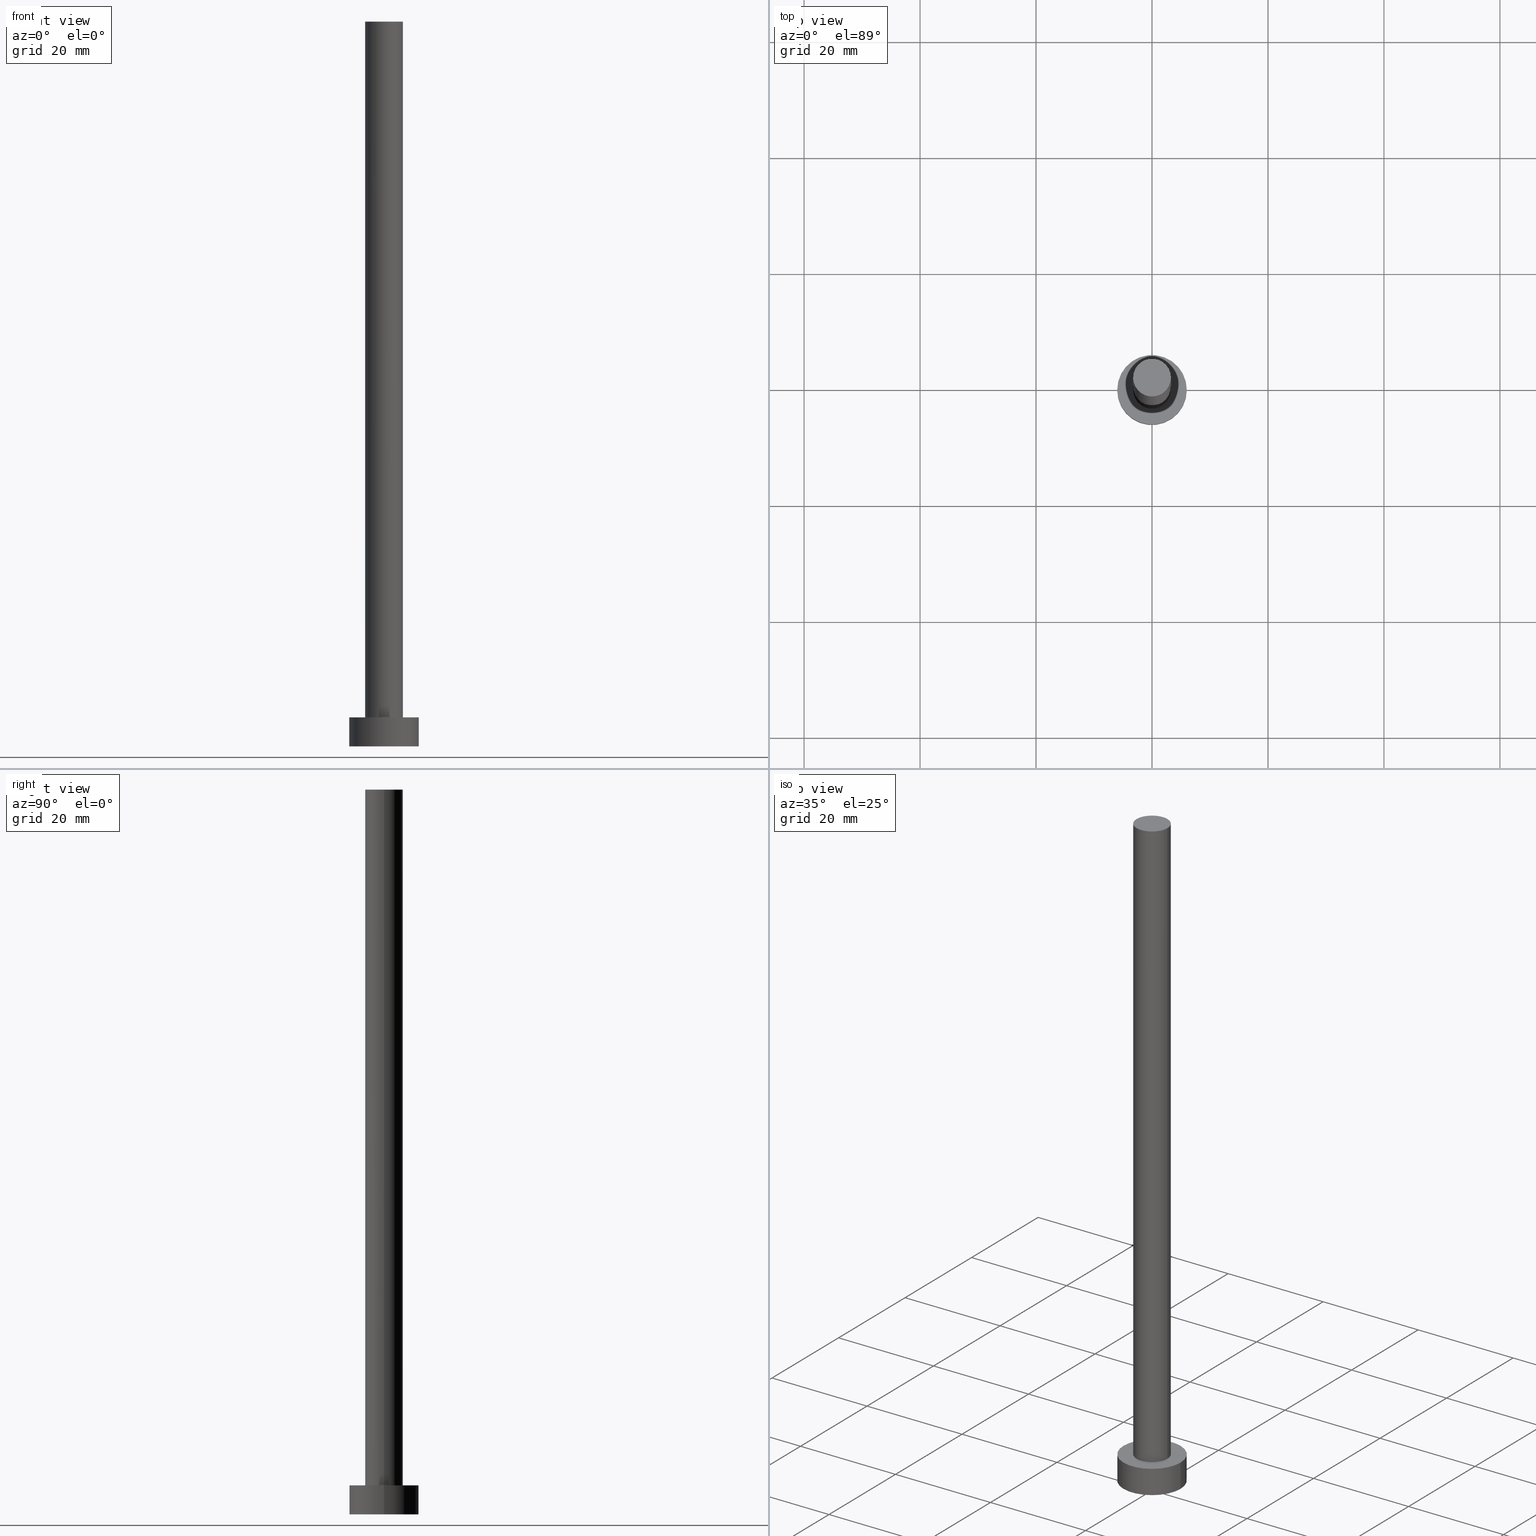
[diagram: canonical four-view strip — front | top / right | iso, engineering-drawing reading convention]
A machine part, canonical four-view strip (front | top / right | iso — engineering-drawing reading convention). The complete STEP part file that produces these views, byte-faithful:
ISO-10303-21;
HEADER;
FILE_DESCRIPTION (( 'STEP AP203' ),
    '1' );
FILE_NAME ('f3b6.STEP',
    '2023-02-12T12:08:41',
    ( '' ),
    ( '' ),
    'SwSTEP 2.0',
    'SolidWorks 2019',
    '' );
FILE_SCHEMA (( 'CONFIG_CONTROL_DESIGN' ));
ENDSEC;

DATA;
#1 = CC_DESIGN_SECURITY_CLASSIFICATION ( #233, ( #229 ) ) ;
#2 = VECTOR ( 'NONE', #177, 1000.000000000000000 ) ;
#3 = EDGE_CURVE ( 'NONE', #64, #122, #103, .T. ) ;
#4 = DATE_AND_TIME ( #57, #148 ) ;
#5 = EDGE_LOOP ( 'NONE', ( #145, #125 ) ) ;
#6 = CALENDAR_DATE ( 2023, 12, 2 ) ;
#7 = CC_DESIGN_DATE_AND_TIME_ASSIGNMENT ( #217, #9, ( #99 ) ) ;
#8 = DIRECTION ( 'NONE',  ( 1.000000000000000000, 0.000000000000000000, 0.000000000000000000 ) ) ;
#9 = DATE_TIME_ROLE ( 'creation_date' ) ;
#10 = CIRCLE ( 'NONE', #173, 3.250000000000000444 ) ;
#11 = CARTESIAN_POINT ( 'NONE',  ( 3.250000000000000444, 3.980102097228898231E-16, 125.0000000000000000 ) ) ;
#12 = ORIENTED_EDGE ( 'NONE', *, *, #20, .T. ) ;
#13 = EDGE_LOOP ( 'NONE', ( #27, #140, #101, #165 ) ) ;
#14 = FACE_OUTER_BOUND ( 'NONE', #5, .T. ) ;
#15 = CC_DESIGN_APPROVAL ( #22, ( #233 ) ) ;
#16 = PLANE ( 'NONE',  #179 ) ;
#17 =( GEOMETRIC_REPRESENTATION_CONTEXT ( 3 ) GLOBAL_UNCERTAINTY_ASSIGNED_CONTEXT ( ( #129 ) ) GLOBAL_UNIT_ASSIGNED_CONTEXT ( ( #213, #19, #56 ) ) REPRESENTATION_CONTEXT ( 'NONE', 'WORKASPACE' ) );
#18 = DIRECTION ( 'NONE',  ( -1.000000000000000000, 0.000000000000000000, 0.000000000000000000 ) ) ;
#19 =( NAMED_UNIT ( * ) PLANE_ANGLE_UNIT ( ) SI_UNIT ( $, .RADIAN. ) );
#20 = EDGE_CURVE ( 'NONE', #224, #64, #139, .T. ) ;
#21 = APPROVAL_DATE_TIME ( #41, #22 ) ;
#22 = APPROVAL ( #117, 'NEUR�EN�' ) ;
#23 = CIRCLE ( 'NONE', #144, 6.000000000000000888 ) ;
#24 = ORIENTED_EDGE ( 'NONE', *, *, #112, .F. ) ;
#25 = DATE_AND_TIME ( #6, #142 ) ;
#26 = APPROVAL_PERSON_ORGANIZATION ( #30, #251, #146 ) ;
#27 = ORIENTED_EDGE ( 'NONE', *, *, #20, .F. ) ;
#28 = ORIENTED_EDGE ( 'NONE', *, *, #226, .T. ) ;
#29 = DIRECTION ( 'NONE',  ( -0.000000000000000000, -0.000000000000000000, -1.000000000000000000 ) ) ;
#30 = PERSON_AND_ORGANIZATION ( #33, #50 ) ;
#31 = EDGE_LOOP ( 'NONE', ( #123, #24, #241, #28 ) ) ;
#32 = DIRECTION ( 'NONE',  ( 0.000000000000000000, 0.000000000000000000, 1.000000000000000000 ) ) ;
#33 = PERSON ( 'NEUR�EN�', 'NEUR�EN�', 'NEUR�EN�', ('NEUR�EN�'), ('NEUR�EN�'), ('NEUR�EN�') ) ;
#34 = DIRECTION ( 'NONE',  ( 0.000000000000000000, 0.000000000000000000, 1.000000000000000000 ) ) ;
#35 = DIRECTION ( 'NONE',  ( -0.000000000000000000, -0.000000000000000000, -1.000000000000000000 ) ) ;
#36 = DIRECTION ( 'NONE',  ( 1.000000000000000000, 0.000000000000000000, 0.000000000000000000 ) ) ;
#37 = DIRECTION ( 'NONE',  ( -1.000000000000000000, 0.000000000000000000, 0.000000000000000000 ) ) ;
#38 = CC_DESIGN_PERSON_AND_ORGANIZATION_ASSIGNMENT ( #40, #174, ( #233 ) ) ;
#39 = AXIS2_PLACEMENT_3D ( 'NONE', #115, #210, #255 ) ;
#40 = PERSON_AND_ORGANIZATION ( #33, #50 ) ;
#41 = DATE_AND_TIME ( #219, #55 ) ;
#42 = EDGE_CURVE ( 'NONE', #159, #122, #23, .T. ) ;
#43 = COORDINATED_UNIVERSAL_TIME_OFFSET ( 1, 0, .AHEAD. ) ;
#44 = DIRECTION ( 'NONE',  ( 0.000000000000000000, 0.000000000000000000, 1.000000000000000000 ) ) ;
#45 = ORIENTED_EDGE ( 'NONE', *, *, #199, .F. ) ;
#46 = AXIS2_PLACEMENT_3D ( 'NONE', #72, #154, #36 ) ;
#47 = PRODUCT ( 'f3b6', 'f3b6', '', ( #168 ) ) ;
#48 = VERTEX_POINT ( 'NONE', #180 ) ;
#49 = PERSON_AND_ORGANIZATION ( #33, #50 ) ;
#50 = ORGANIZATION ( 'NEUR�EN�', 'NEUR�EN�', '' ) ;
#51 = CARTESIAN_POINT ( 'NONE',  ( 0.000000000000000000, 0.000000000000000000, 125.0000000000000000 ) ) ;
#52 = DIRECTION ( 'NONE',  ( 0.000000000000000000, 0.000000000000000000, 1.000000000000000000 ) ) ;
#53 = FACE_OUTER_BOUND ( 'NONE', #58, .T. ) ;
#54 = FACE_OUTER_BOUND ( 'NONE', #203, .T. ) ;
#55 = LOCAL_TIME ( 13, 8, 41.00000000000000000, #136 ) ;
#56 =( NAMED_UNIT ( * ) SI_UNIT ( $, .STERADIAN. ) SOLID_ANGLE_UNIT ( ) );
#57 = CALENDAR_DATE ( 2023, 12, 2 ) ;
#58 = EDGE_LOOP ( 'NONE', ( #81, #243 ) ) ;
#59 = CARTESIAN_POINT ( 'NONE',  ( -6.000000000000000888, 0.000000000000000000, 5.000000000000000000 ) ) ;
#60 = APPROVAL_DATE_TIME ( #25, #120 ) ;
#61 = VERTEX_POINT ( 'NONE', #11 ) ;
#62 = EDGE_CURVE ( 'NONE', #61, #78, #162, .T. ) ;
#63 = EDGE_LOOP ( 'NONE', ( #225, #239, #198, #85 ) ) ;
#64 = VERTEX_POINT ( 'NONE', #88 ) ;
#65 = DIRECTION ( 'NONE',  ( -0.000000000000000000, -0.000000000000000000, -1.000000000000000000 ) ) ;
#66 = CIRCLE ( 'NONE', #245, 6.000000000000000888 ) ;
#67 = PLANE ( 'NONE',  #244 ) ;
#68 = EDGE_CURVE ( 'NONE', #78, #48, #10, .T. ) ;
#69 = AXIS2_PLACEMENT_3D ( 'NONE', #150, #52, #128 ) ;
#70 = CIRCLE ( 'NONE', #46, 3.250000000000000444 ) ;
#71 = CARTESIAN_POINT ( 'NONE',  ( 6.000000000000000888, 7.347880794884120722E-16, 0.000000000000000000 ) ) ;
#72 = CARTESIAN_POINT ( 'NONE',  ( 0.000000000000000000, 0.000000000000000000, 5.000000000000000000 ) ) ;
#73 = AXIS2_PLACEMENT_3D ( 'NONE', #113, #32, #92 ) ;
#74 = CYLINDRICAL_SURFACE ( 'NONE', #105, 6.000000000000000888 ) ;
#75 = PERSON_AND_ORGANIZATION ( #33, #50 ) ;
#76 = CC_DESIGN_APPROVAL ( #251, ( #99 ) ) ;
#77 = ORIENTED_EDGE ( 'NONE', *, *, #190, .F. ) ;
#78 = VERTEX_POINT ( 'NONE', #207 ) ;
#79 = PERSON_AND_ORGANIZATION ( #33, #50 ) ;
#80 = COORDINATED_UNIVERSAL_TIME_OFFSET ( 1, 0, .AHEAD. ) ;
#81 = ORIENTED_EDGE ( 'NONE', *, *, #192, .F. ) ;
#82 = ADVANCED_FACE ( 'NONE', ( #205 ), #107, .T. ) ;
#83 = ORIENTED_EDGE ( 'NONE', *, *, #68, .F. ) ;
#84 = APPLICATION_PROTOCOL_DEFINITION ( 'international standard', 'config_control_design', 1994, #110 ) ;
#85 = ORIENTED_EDGE ( 'NONE', *, *, #192, .T. ) ;
#86 = DIRECTION ( 'NONE',  ( -0.000000000000000000, -0.000000000000000000, -1.000000000000000000 ) ) ;
#87 = CC_DESIGN_APPROVAL ( #120, ( #229 ) ) ;
#88 = CARTESIAN_POINT ( 'NONE',  ( -6.000000000000000888, 0.000000000000000000, 5.000000000000000000 ) ) ;
#89 = DESIGN_CONTEXT ( 'detailed design', #110, 'design' ) ;
#90 = CARTESIAN_POINT ( 'NONE',  ( -6.000000000000000888, 0.000000000000000000, 0.000000000000000000 ) ) ;
#91 = ADVANCED_FACE ( 'NONE', ( #53 ), #16, .F. ) ;
#92 = DIRECTION ( 'NONE',  ( 1.000000000000000000, 0.000000000000000000, 0.000000000000000000 ) ) ;
#93 = DIRECTION ( 'NONE',  ( -0.000000000000000000, -0.000000000000000000, -1.000000000000000000 ) ) ;
#94 = DIRECTION ( 'NONE',  ( -1.000000000000000000, 0.000000000000000000, 0.000000000000000000 ) ) ;
#95 = PERSON_AND_ORGANIZATION_ROLE ( 'design_supplier' ) ;
#96 = CIRCLE ( 'NONE', #121, 3.250000000000000444 ) ;
#97 = APPROVAL_STATUS ( 'not_yet_approved' ) ;
#98 = ADVANCED_BREP_SHAPE_REPRESENTATION ( 'f3b6', ( #118, #211 ), #17 ) ;
#99 = PRODUCT_DEFINITION ( 'NEZN�M�', '', #229, #89 ) ;
#100 = ORIENTED_EDGE ( 'NONE', *, *, #68, .T. ) ;
#101 = ORIENTED_EDGE ( 'NONE', *, *, #42, .T. ) ;
#102 = CALENDAR_DATE ( 2023, 12, 2 ) ;
#103 = LINE ( 'NONE', #59, #2 ) ;
#104 = PERSON_AND_ORGANIZATION_ROLE ( 'design_owner' ) ;
#105 = AXIS2_PLACEMENT_3D ( 'NONE', #215, #132, #94 ) ;
#106 = ORIENTED_EDGE ( 'NONE', *, *, #196, .T. ) ;
#107 = CYLINDRICAL_SURFACE ( 'NONE', #135, 6.000000000000000888 ) ;
#108 = CARTESIAN_POINT ( 'NONE',  ( 0.000000000000000000, 0.000000000000000000, 5.000000000000000000 ) ) ;
#109 = LOCAL_TIME ( 13, 8, 41.00000000000000000, #138 ) ;
#110 = APPLICATION_CONTEXT ( 'configuration controlled 3d designs of mechanical parts and assemblies' ) ;
#111 = DIRECTION ( 'NONE',  ( 1.000000000000000000, 0.000000000000000000, -0.000000000000000000 ) ) ;
#112 = EDGE_CURVE ( 'NONE', #182, #61, #96, .T. ) ;
#113 = CARTESIAN_POINT ( 'NONE',  ( 0.000000000000000000, 0.000000000000000000, 0.000000000000000000 ) ) ;
#114 = APPROVAL_PERSON_ORGANIZATION ( #79, #120, #197 ) ;
#115 = CARTESIAN_POINT ( 'NONE',  ( 0.000000000000000000, 0.000000000000000000, 125.0000000000000000 ) ) ;
#116 = CARTESIAN_POINT ( 'NONE',  ( 0.000000000000000000, 0.000000000000000000, 125.0000000000000000 ) ) ;
#117 = APPROVAL_STATUS ( 'not_yet_approved' ) ;
#118 = MANIFOLD_SOLID_BREP ( 'P�idat vysunut�m3', #221 ) ;
#119 = SHAPE_DEFINITION_REPRESENTATION ( #124, #98 ) ;
#120 = APPROVAL ( #97, 'NEUR�EN�' ) ;
#121 = AXIS2_PLACEMENT_3D ( 'NONE', #186, #184, #170 ) ;
#122 = VERTEX_POINT ( 'NONE', #90 ) ;
#123 = ORIENTED_EDGE ( 'NONE', *, *, #62, .F. ) ;
#124 = PRODUCT_DEFINITION_SHAPE ( 'NONE', 'NONE',  #99 ) ;
#125 = ORIENTED_EDGE ( 'NONE', *, *, #199, .T. ) ;
#126 = PERSON_AND_ORGANIZATION_ROLE ( 'creator' ) ;
#127 = DIRECTION ( 'NONE',  ( 1.000000000000000000, 0.000000000000000000, 0.000000000000000000 ) ) ;
#128 = DIRECTION ( 'NONE',  ( 1.000000000000000000, 0.000000000000000000, -0.000000000000000000 ) ) ;
#129 = UNCERTAINTY_MEASURE_WITH_UNIT (LENGTH_MEASURE( 1.000000000000000082E-05 ), #213, 'distance_accuracy_value', 'NONE');
#130 = LINE ( 'NONE', #209, #216 ) ;
#131 = CYLINDRICAL_SURFACE ( 'NONE', #218, 3.250000000000000444 ) ;
#132 = DIRECTION ( 'NONE',  ( -0.000000000000000000, -0.000000000000000000, -1.000000000000000000 ) ) ;
#133 = CC_DESIGN_PERSON_AND_ORGANIZATION_ASSIGNMENT ( #178, #104, ( #47 ) ) ;
#134 = FACE_OUTER_BOUND ( 'NONE', #31, .T. ) ;
#135 = AXIS2_PLACEMENT_3D ( 'NONE', #171, #65, #18 ) ;
#136 = COORDINATED_UNIVERSAL_TIME_OFFSET ( 1, 0, .AHEAD. ) ;
#137 = EDGE_LOOP ( 'NONE', ( #163, #83 ) ) ;
#138 = COORDINATED_UNIVERSAL_TIME_OFFSET ( 1, 0, .AHEAD. ) ;
#139 = CIRCLE ( 'NONE', #194, 6.000000000000000888 ) ;
#140 = ORIENTED_EDGE ( 'NONE', *, *, #153, .T. ) ;
#141 = PRODUCT_RELATED_PRODUCT_CATEGORY ( 'detail', '', ( #47 ) ) ;
#142 = LOCAL_TIME ( 13, 8, 41.00000000000000000, #43 ) ;
#143 = DATE_AND_TIME ( #161, #188 ) ;
#144 = AXIS2_PLACEMENT_3D ( 'NONE', #160, #44, #240 ) ;
#145 = ORIENTED_EDGE ( 'NONE', *, *, #112, .T. ) ;
#146 = APPROVAL_ROLE ( '' ) ;
#147 = ADVANCED_FACE ( 'NONE', ( #14 ), #67, .T. ) ;
#148 = LOCAL_TIME ( 13, 8, 41.00000000000000000, #236 ) ;
#149 = DIRECTION ( 'NONE',  ( 0.000000000000000000, 0.000000000000000000, 1.000000000000000000 ) ) ;
#150 = CARTESIAN_POINT ( 'NONE',  ( 0.000000000000000000, 0.000000000000000000, 5.000000000000000000 ) ) ;
#151 = DIRECTION ( 'NONE',  ( 1.000000000000000000, 0.000000000000000000, 0.000000000000000000 ) ) ;
#152 = CIRCLE ( 'NONE', #39, 3.250000000000000444 ) ;
#153 = EDGE_CURVE ( 'NONE', #224, #159, #248, .T. ) ;
#154 = DIRECTION ( 'NONE',  ( 0.000000000000000000, 0.000000000000000000, 1.000000000000000000 ) ) ;
#155 = DIRECTION ( 'NONE',  ( -1.000000000000000000, 0.000000000000000000, 0.000000000000000000 ) ) ;
#156 = ADVANCED_FACE ( 'NONE', ( #247, #230 ), #252, .T. ) ;
#157 = PERSON_AND_ORGANIZATION ( #33, #50 ) ;
#158 = DATE_TIME_ROLE ( 'classification_date' ) ;
#159 = VERTEX_POINT ( 'NONE', #71 ) ;
#160 = CARTESIAN_POINT ( 'NONE',  ( 0.000000000000000000, 0.000000000000000000, 0.000000000000000000 ) ) ;
#161 = CALENDAR_DATE ( 2023, 12, 2 ) ;
#162 = LINE ( 'NONE', #202, #208 ) ;
#163 = ORIENTED_EDGE ( 'NONE', *, *, #226, .F. ) ;
#164 = VECTOR ( 'NONE', #86, 1000.000000000000000 ) ;
#165 = ORIENTED_EDGE ( 'NONE', *, *, #3, .F. ) ;
#166 = APPROVAL_PERSON_ORGANIZATION ( #75, #22, #195 ) ;
#167 = CARTESIAN_POINT ( 'NONE',  ( 0.000000000000000000, 0.000000000000000000, 5.000000000000000000 ) ) ;
#168 = MECHANICAL_CONTEXT ( 'NONE', #212, 'mechanical' ) ;
#169 = CC_DESIGN_PERSON_AND_ORGANIZATION_ASSIGNMENT ( #157, #175, ( #229 ) ) ;
#170 = DIRECTION ( 'NONE',  ( 1.000000000000000000, 0.000000000000000000, 0.000000000000000000 ) ) ;
#171 = CARTESIAN_POINT ( 'NONE',  ( 0.000000000000000000, 0.000000000000000000, 5.000000000000000000 ) ) ;
#172 = CARTESIAN_POINT ( 'NONE',  ( 6.000000000000000888, 7.347880794884120722E-16, 5.000000000000000000 ) ) ;
#173 = AXIS2_PLACEMENT_3D ( 'NONE', #167, #187, #151 ) ;
#174 = PERSON_AND_ORGANIZATION_ROLE ( 'classification_officer' ) ;
#175 = PERSON_AND_ORGANIZATION_ROLE ( 'creator' ) ;
#176 = PERSON_AND_ORGANIZATION ( #33, #50 ) ;
#177 = DIRECTION ( 'NONE',  ( -0.000000000000000000, -0.000000000000000000, -1.000000000000000000 ) ) ;
#178 = PERSON_AND_ORGANIZATION ( #33, #50 ) ;
#179 = AXIS2_PLACEMENT_3D ( 'NONE', #250, #34, #111 ) ;
#180 = CARTESIAN_POINT ( 'NONE',  ( -3.250000000000000444, 0.000000000000000000, 5.000000000000000000 ) ) ;
#181 = DIRECTION ( 'NONE',  ( 1.000000000000000000, 0.000000000000000000, 0.000000000000000000 ) ) ;
#182 = VERTEX_POINT ( 'NONE', #231 ) ;
#183 = CIRCLE ( 'NONE', #73, 6.000000000000000888 ) ;
#184 = DIRECTION ( 'NONE',  ( 0.000000000000000000, 0.000000000000000000, 1.000000000000000000 ) ) ;
#185 = DIRECTION ( 'NONE',  ( 0.000000000000000000, 0.000000000000000000, 1.000000000000000000 ) ) ;
#186 = CARTESIAN_POINT ( 'NONE',  ( 0.000000000000000000, 0.000000000000000000, 125.0000000000000000 ) ) ;
#187 = DIRECTION ( 'NONE',  ( 0.000000000000000000, 0.000000000000000000, 1.000000000000000000 ) ) ;
#188 = LOCAL_TIME ( 13, 8, 41.00000000000000000, #80 ) ;
#189 = APPLICATION_PROTOCOL_DEFINITION ( 'international standard', 'config_control_design', 1994, #212 ) ;
#190 = EDGE_CURVE ( 'NONE', #182, #48, #130, .T. ) ;
#191 = CARTESIAN_POINT ( 'NONE',  ( 6.000000000000000888, 7.347880794884120722E-16, 5.000000000000000000 ) ) ;
#192 = EDGE_CURVE ( 'NONE', #122, #159, #183, .T. ) ;
#193 = CYLINDRICAL_SURFACE ( 'NONE', #223, 3.250000000000000444 ) ;
#194 = AXIS2_PLACEMENT_3D ( 'NONE', #220, #227, #8 ) ;
#195 = APPROVAL_ROLE ( '' ) ;
#196 = EDGE_CURVE ( 'NONE', #64, #224, #66, .T. ) ;
#197 = APPROVAL_ROLE ( '' ) ;
#198 = ORIENTED_EDGE ( 'NONE', *, *, #3, .T. ) ;
#199 = EDGE_CURVE ( 'NONE', #61, #182, #152, .T. ) ;
#200 = ORIENTED_EDGE ( 'NONE', *, *, #62, .T. ) ;
#201 = CC_DESIGN_PERSON_AND_ORGANIZATION_ASSIGNMENT ( #176, #95, ( #229 ) ) ;
#202 = CARTESIAN_POINT ( 'NONE',  ( 3.250000000000000444, 3.980102097228898231E-16, 125.0000000000000000 ) ) ;
#203 = EDGE_LOOP ( 'NONE', ( #45, #200, #100, #77 ) ) ;
#204 = DIRECTION ( 'NONE',  ( 0.000000000000000000, 0.000000000000000000, 1.000000000000000000 ) ) ;
#205 = FACE_OUTER_BOUND ( 'NONE', #63, .T. ) ;
#206 = DIRECTION ( 'NONE',  ( 1.000000000000000000, 0.000000000000000000, -0.000000000000000000 ) ) ;
#207 = CARTESIAN_POINT ( 'NONE',  ( 3.250000000000000444, 3.980102097228898231E-16, 5.000000000000000000 ) ) ;
#208 = VECTOR ( 'NONE', #29, 1000.000000000000000 ) ;
#209 = CARTESIAN_POINT ( 'NONE',  ( -3.250000000000000444, 0.000000000000000000, 125.0000000000000000 ) ) ;
#210 = DIRECTION ( 'NONE',  ( 0.000000000000000000, 0.000000000000000000, 1.000000000000000000 ) ) ;
#211 = AXIS2_PLACEMENT_3D ( 'NONE', #253, #185, #181 ) ;
#212 = APPLICATION_CONTEXT ( 'configuration controlled 3d designs of mechanical parts and assemblies' ) ;
#213 =( LENGTH_UNIT ( ) NAMED_UNIT ( * ) SI_UNIT ( .MILLI., .METRE. ) );
#214 = CC_DESIGN_DATE_AND_TIME_ASSIGNMENT ( #4, #158, ( #233 ) ) ;
#215 = CARTESIAN_POINT ( 'NONE',  ( 0.000000000000000000, 0.000000000000000000, 5.000000000000000000 ) ) ;
#216 = VECTOR ( 'NONE', #35, 1000.000000000000000 ) ;
#217 = DATE_AND_TIME ( #102, #109 ) ;
#218 = AXIS2_PLACEMENT_3D ( 'NONE', #116, #234, #155 ) ;
#219 = CALENDAR_DATE ( 2023, 12, 2 ) ;
#220 = CARTESIAN_POINT ( 'NONE',  ( 0.000000000000000000, 0.000000000000000000, 5.000000000000000000 ) ) ;
#221 = CLOSED_SHELL ( 'NONE', ( #238, #237, #82, #156, #91, #249, #147 ) ) ;
#222 = EDGE_LOOP ( 'NONE', ( #106, #12 ) ) ;
#223 = AXIS2_PLACEMENT_3D ( 'NONE', #254, #93, #37 ) ;
#224 = VERTEX_POINT ( 'NONE', #191 ) ;
#225 = ORIENTED_EDGE ( 'NONE', *, *, #153, .F. ) ;
#226 = EDGE_CURVE ( 'NONE', #48, #78, #70, .T. ) ;
#227 = DIRECTION ( 'NONE',  ( 0.000000000000000000, 0.000000000000000000, 1.000000000000000000 ) ) ;
#228 = APPROVAL_DATE_TIME ( #143, #251 ) ;
#229 = PRODUCT_DEFINITION_FORMATION_WITH_SPECIFIED_SOURCE ( 'LIBOVOLN�', '', #47, .NOT_KNOWN. ) ;
#230 = FACE_OUTER_BOUND ( 'NONE', #222, .T. ) ;
#231 = CARTESIAN_POINT ( 'NONE',  ( -3.250000000000000444, 0.000000000000000000, 125.0000000000000000 ) ) ;
#232 = FACE_OUTER_BOUND ( 'NONE', #13, .T. ) ;
#233 = SECURITY_CLASSIFICATION ( '', '', #235 ) ;
#234 = DIRECTION ( 'NONE',  ( -0.000000000000000000, -0.000000000000000000, -1.000000000000000000 ) ) ;
#235 = SECURITY_CLASSIFICATION_LEVEL ( 'unclassified' ) ;
#236 = COORDINATED_UNIVERSAL_TIME_OFFSET ( 1, 0, .AHEAD. ) ;
#237 = ADVANCED_FACE ( 'NONE', ( #232 ), #74, .T. ) ;
#238 = ADVANCED_FACE ( 'NONE', ( #54 ), #131, .T. ) ;
#239 = ORIENTED_EDGE ( 'NONE', *, *, #196, .F. ) ;
#240 = DIRECTION ( 'NONE',  ( 1.000000000000000000, 0.000000000000000000, 0.000000000000000000 ) ) ;
#241 = ORIENTED_EDGE ( 'NONE', *, *, #190, .T. ) ;
#242 = APPROVAL_STATUS ( 'not_yet_approved' ) ;
#243 = ORIENTED_EDGE ( 'NONE', *, *, #42, .F. ) ;
#244 = AXIS2_PLACEMENT_3D ( 'NONE', #51, #204, #206 ) ;
#245 = AXIS2_PLACEMENT_3D ( 'NONE', #108, #149, #127 ) ;
#246 = CC_DESIGN_PERSON_AND_ORGANIZATION_ASSIGNMENT ( #49, #126, ( #99 ) ) ;
#247 = FACE_BOUND ( 'NONE', #137, .T. ) ;
#248 = LINE ( 'NONE', #172, #164 ) ;
#249 = ADVANCED_FACE ( 'NONE', ( #134 ), #193, .T. ) ;
#250 = CARTESIAN_POINT ( 'NONE',  ( 0.000000000000000000, 0.000000000000000000, 0.000000000000000000 ) ) ;
#251 = APPROVAL ( #242, 'NEUR�EN�' ) ;
#252 = PLANE ( 'NONE',  #69 ) ;
#253 = CARTESIAN_POINT ( 'NONE',  ( 0.000000000000000000, 0.000000000000000000, 0.000000000000000000 ) ) ;
#254 = CARTESIAN_POINT ( 'NONE',  ( 0.000000000000000000, 0.000000000000000000, 125.0000000000000000 ) ) ;
#255 = DIRECTION ( 'NONE',  ( 1.000000000000000000, 0.000000000000000000, 0.000000000000000000 ) ) ;
ENDSEC;
END-ISO-10303-21;
